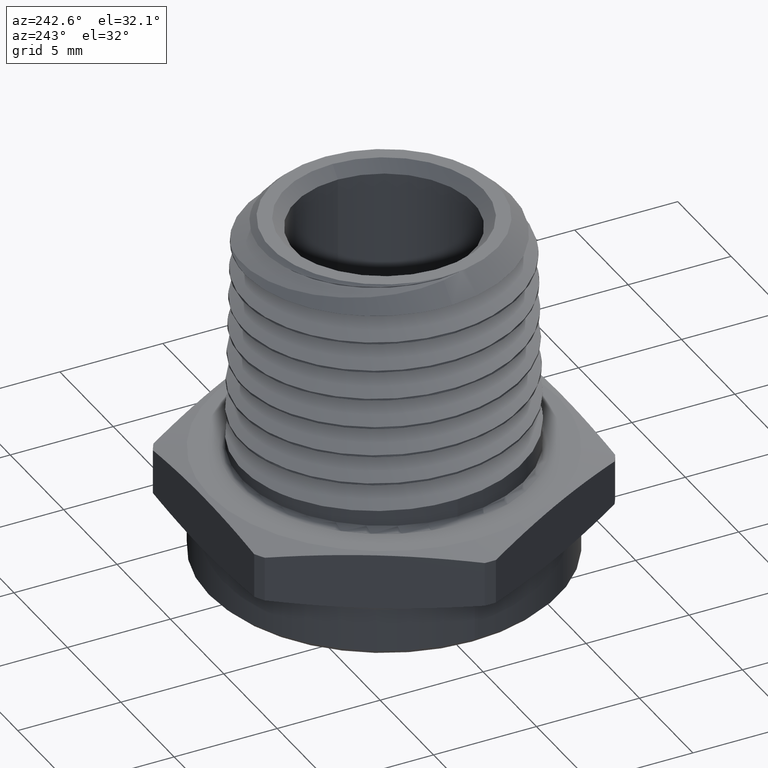
[diagram: clean part render]
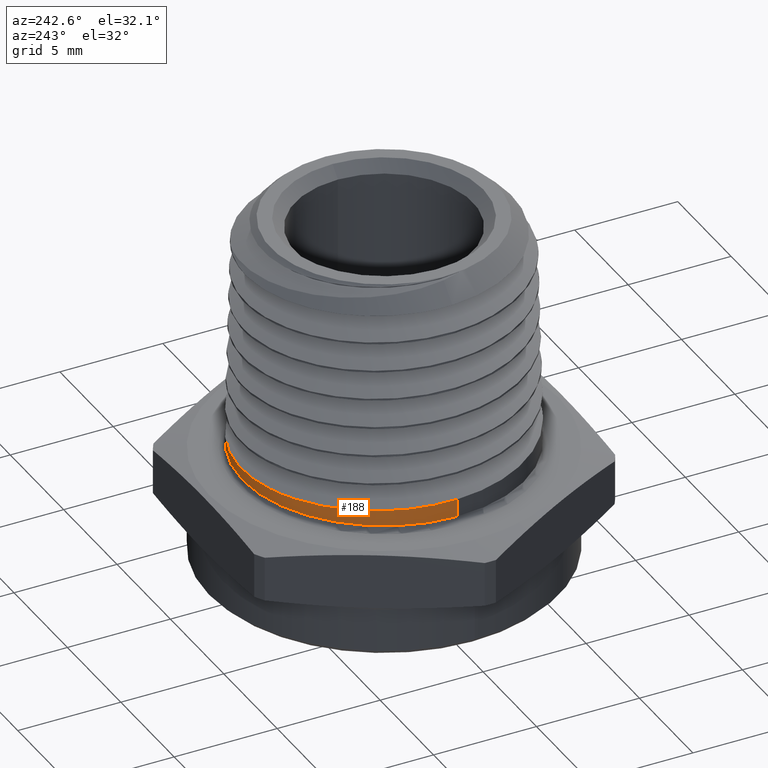
[diagram: same view with one face highlighted and labeled with its STEP entity id]
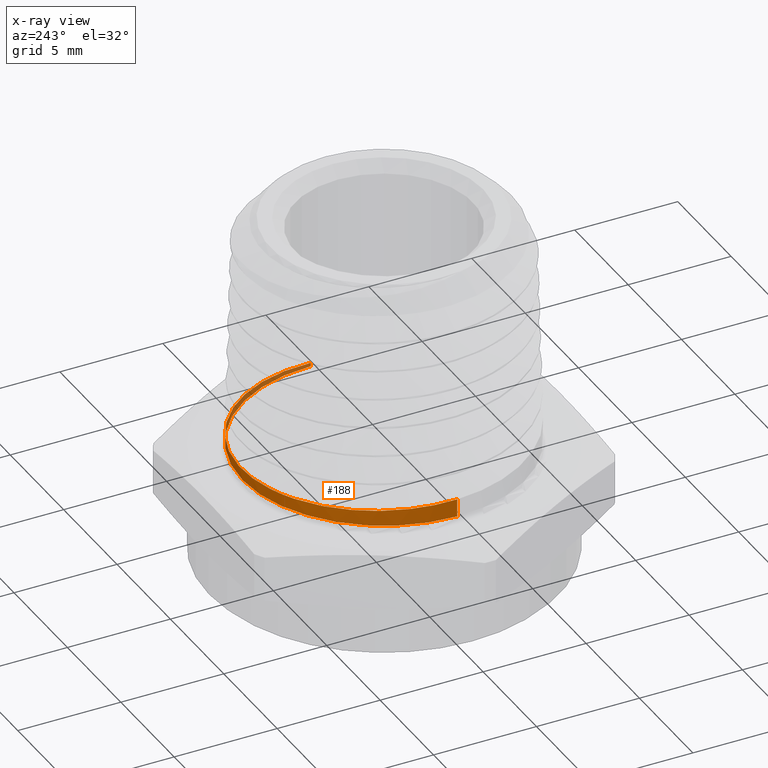
[diagram: x-ray of the same camera — body ghosted, the highlighted face saturated]
A machine part, auxiliary view. The second image highlights one B-rep face of the part: STEP entity #188.
The next image is the same camera in x-ray: the body ghosted, the highlighted face saturated — about 11% of this face is hidden behind the body in this view.
In plain terms, the highlighted cylindrical surface (partial cylindrical patch) has radius 6.858 mm, axis along (-0, -0, -1).
Its self-contained STEP definition (entity closure, byte-faithful):
#188 = ADVANCED_FACE ( 'NONE', ( #766 ), #769, .T. ) ;
#271 = EDGE_CURVE ( 'NONE', #467, #572, #1526, .T. ) ;
#272 = EDGE_CURVE ( 'NONE', #467, #644, #880, .T. ) ;
#273 = EDGE_CURVE ( 'NONE', #644, #641, #877, .T. ) ;
#274 = EDGE_CURVE ( 'NONE', #572, #641, #882, .T. ) ;
#463 = ORIENTED_EDGE ( 'NONE', *, *, #271, .F. ) ;
#467 = VERTEX_POINT ( 'NONE', #4915 ) ;
#516 = EDGE_LOOP ( 'NONE', ( #463, #544, #545, #546 ) ) ;
#544 = ORIENTED_EDGE ( 'NONE', *, *, #272, .T. ) ;
#545 = ORIENTED_EDGE ( 'NONE', *, *, #273, .T. ) ;
#546 = ORIENTED_EDGE ( 'NONE', *, *, #274, .F. ) ;
#572 = VERTEX_POINT ( 'NONE', #4940 ) ;
#641 = VERTEX_POINT ( 'NONE', #4954 ) ;
#644 = VERTEX_POINT ( 'NONE', #4957 ) ;
#766 = FACE_OUTER_BOUND ( 'NONE', #516, .T. ) ;
#769 = CYLINDRICAL_SURFACE ( 'NONE', #1694, 0.2700000000000000200 ) ;
#877 = CIRCLE ( 'NONE', #1744, 0.2700000000000000200 ) ;
#880 = LINE ( 'NONE', #2610, #881 ) ;
#881 = VECTOR ( 'NONE', #2612, 39.37007874015748100 ) ;
#882 = LINE ( 'NONE', #2611, #884 ) ;
#884 = VECTOR ( 'NONE', #2618, 39.37007874015748100 ) ;
#1526 = B_SPLINE_CURVE_WITH_KNOTS ( 'NONE', 3,
 ( #2564, #2565, #2569, #2570, #2571, #2572, #2573, #2574, #2575, #2576, #2577, #2578, #2579, #2580, #2581, #2582, #2583, #2584, #2585, #2586, #2587, #2588, #2589, #2590, #2591, #2592, #2593, #2594, #2595, #2596, #2597, #2598, #2599, #2600, #2601, #2602, #2603, #2604, #2605, #2606, #2607, #2608, #2609 ),
 .UNSPECIFIED., .F., .F.,
 ( 4, 2, 2, 2, 2, 2, 2, 2, 1, 2, 2, 2, 2, 2, 2, 2, 2, 2, 2, 2, 2, 4 ),
 ( 3.047113659557282900E-019, 0.001340394002137007300, 0.002010591003205511300, 0.002680788004274014700, 0.004021182006411021800, 0.005361576008548030200, 0.006701970010685037700, 0.007372167011753542400, 0.008042364012822047000, 0.008712561013890552500, 0.009382758014959058000, 0.01072315201709606700, 0.01206354601923307700, 0.01340394002137008600, 0.01474433402350709500, 0.01541453102457560200, 0.01608472802564410800, 0.01742512202778111900, 0.01809531902884962600, 0.01876551602991813300, 0.02010591003205514100, 0.02144630403419214800 ),
 .UNSPECIFIED. ) ;
#1611 = DIRECTION ( 'NONE',  ( -1.000000000000000000, 0.0000000000000000000, 0.0000000000000000000 ) ) ;
#1612 = CARTESIAN_POINT ( 'NONE',  ( 0.0000000000000000000, 0.0000000000000000000, 0.5699999999999999500 ) ) ;
#1613 = DIRECTION ( 'NONE',  ( -0.0000000000000000000, -0.0000000000000000000, -1.000000000000000000 ) ) ;
#1694 = AXIS2_PLACEMENT_3D ( 'NONE', #1612, #1613, #1611 ) ;
#1744 = AXIS2_PLACEMENT_3D ( 'NONE', #2615, #2616, #2617 ) ;
#2564 = CARTESIAN_POINT ( 'NONE',  ( 0.2700000000000000200, 5.166896526034304000E-016, 0.1268515041418107600 ) ) ;
#2565 = CARTESIAN_POINT ( 'NONE',  ( 0.2700000000000000700, 0.01783445152731889500, 0.1274269384289741500 ) ) ;
#2569 = CARTESIAN_POINT ( 'NONE',  ( 0.2682502563384419600, 0.03537138067886661700, 0.1279835175848953500 ) ) ;
#2570 = CARTESIAN_POINT ( 'NONE',  ( 0.2631085261991488700, 0.06124734353834508600, 0.1288346710481226800 ) ) ;
#2571 = CARTESIAN_POINT ( 'NONE',  ( 0.2609719895884684000, 0.06980058264910780900, 0.1291205109961278400 ) ) ;
#2572 = CARTESIAN_POINT ( 'NONE',  ( 0.2558344603213222300, 0.08675960811354767300, 0.1296969540593430600 ) ) ;
#2573 = CARTESIAN_POINT ( 'NONE',  ( 0.2528188307303880800, 0.09518884875942464100, 0.1299884193214419500 ) ) ;
#2574 = CARTESIAN_POINT ( 'NONE',  ( 0.2426577475059553100, 0.1197093562568807100, 0.1308447916443683500 ) ) ;
#2575 = CARTESIAN_POINT ( 'NONE',  ( 0.2343669510351275300, 0.1352158726190569000, 0.1313998592707439100 ) ) ;
#2576 = CARTESIAN_POINT ( 'NONE',  ( 0.2147805341364446000, 0.1645616057946035200, 0.1325381074111931000 ) ) ;
#2577 = CARTESIAN_POINT ( 'NONE',  ( 0.2033796956324514800, 0.1784568891828841900, 0.1331249872874615300 ) ) ;
#2578 = CARTESIAN_POINT ( 'NONE',  ( 0.1784744722225370900, 0.2033642659300488900, 0.1342614743186101600 ) ) ;
#2579 = CARTESIAN_POINT ( 'NONE',  ( 0.1648854460068792900, 0.2145408775478475400, 0.1348168728827416900 ) ) ;
#2580 = CARTESIAN_POINT ( 'NONE',  ( 0.1427583960047453500, 0.2293442608419149500, 0.1356757466267014300 ) ) ;
#2581 = CARTESIAN_POINT ( 'NONE',  ( 0.1350903001458071100, 0.2339416315203466700, 0.1359656919204895500 ) ) ;
#2582 = CARTESIAN_POINT ( 'NONE',  ( 0.1195055909079631300, 0.2422735848036770300, 0.1365407154947395300 ) ) ;
#2583 = CARTESIAN_POINT ( 'NONE',  ( 0.1035906053195424500, 0.2498008068791998900, 0.1371140563541170300 ) ) ;
#2584 = CARTESIAN_POINT ( 'NONE',  ( 0.08702490804668958100, 0.2557432891079883800, 0.1376753628090632000 ) ) ;
#2585 = CARTESIAN_POINT ( 'NONE',  ( 0.07012979715420854200, 0.2608826864615903500, 0.1382403279984579800 ) ) ;
#2586 = CARTESIAN_POINT ( 'NONE',  ( 0.06147438563975466500, 0.2630587177935813600, 0.1385260670990290400 ) ) ;
#2587 = CARTESIAN_POINT ( 'NONE',  ( 0.03532560583271775200, 0.2682686302207267800, 0.1393862719705689600 ) ) ;
#2588 = CARTESIAN_POINT ( 'NONE',  ( 0.01776996152224626400, 0.2699938980430861000, 0.1399623122440608900 ) ) ;
#2589 = CARTESIAN_POINT ( 'NONE',  ( -0.01758404679158271900, 0.2700060699529435700, 0.1411031102310831300 ) ) ;
#2590 = CARTESIAN_POINT ( 'NONE',  ( -0.03545093180093407400, 0.2682434125453591100, 0.1416699769316198700 ) ) ;
#2591 = CARTESIAN_POINT ( 'NONE',  ( -0.07005803201944450800, 0.2613487499283221900, 0.1428085096059333900 ) ) ;
#2592 = CARTESIAN_POINT ( 'NONE',  ( -0.08703200813992220700, 0.2562072555623230400, 0.1433877028999715200 ) ) ;
#2593 = CARTESIAN_POINT ( 'NONE',  ( -0.1199083582877405900, 0.2425669265509702900, 0.1445359959676083500 ) ) ;
#2594 = CARTESIAN_POINT ( 'NONE',  ( -0.1354263714337966000, 0.2342419649443940000, 0.1450919045714655400 ) ) ;
#2595 = CARTESIAN_POINT ( 'NONE',  ( -0.1573682204637789900, 0.2195737763104860200, 0.1459434661137437300 ) ) ;
#2596 = CARTESIAN_POINT ( 'NONE',  ( -0.1644580410881340500, 0.2143182696693025100, 0.1462296713347236700 ) ) ;
#2597 = CARTESIAN_POINT ( 'NONE',  ( -0.1781774791141257900, 0.2030555439507267800, 0.1468072408967733600 ) ) ;
#2598 = CARTESIAN_POINT ( 'NONE',  ( -0.1847973313768501200, 0.1970482417521815500, 0.1470983492866631300 ) ) ;
#2599 = CARTESIAN_POINT ( 'NONE',  ( -0.2035279334639231200, 0.1782936716387625000, 0.1479534526292354000 ) ) ;
#2600 = CARTESIAN_POINT ( 'NONE',  ( -0.2146769399322362400, 0.1646988692315010400, 0.1485084882366272700 ) ) ;
#2601 = CARTESIAN_POINT ( 'NONE',  ( -0.2293957849049994000, 0.1426728789364687100, 0.1493631881303134600 ) ) ;
#2602 = CARTESIAN_POINT ( 'NONE',  ( -0.2339870483908745000, 0.1350146533939686200, 0.1496527617789156200 ) ) ;
#2603 = CARTESIAN_POINT ( 'NONE',  ( -0.2423548061569767700, 0.1193442222245432600, 0.1502308026347014800 ) ) ;
#2604 = CARTESIAN_POINT ( 'NONE',  ( -0.2461231997872563900, 0.1113589157249600000, 0.1505183446227804900 ) ) ;
#2605 = CARTESIAN_POINT ( 'NONE',  ( -0.2562164072194421700, 0.08696495277631738400, 0.1513700617943435100 ) ) ;
#2606 = CARTESIAN_POINT ( 'NONE',  ( -0.2613407848404256700, 0.07012250413707397900, 0.1519257938527396000 ) ) ;
#2607 = CARTESIAN_POINT ( 'NONE',  ( -0.2682798121680992100, 0.03524363475172520600, 0.1530731614110629500 ) ) ;
#2608 = CARTESIAN_POINT ( 'NONE',  ( -0.2700000000000325500, 0.01758202900149030700, 0.1536526273707124500 ) ) ;
#2609 = CARTESIAN_POINT ( 'NONE',  ( -0.2700000000000000200, -5.001907114631542600E-013, 0.1542199171673591700 ) ) ;
#2610 = CARTESIAN_POINT ( 'NONE',  ( 0.2700000000000000200, 3.306546357697853700E-017, 0.5699999999999999500 ) ) ;
#2611 = CARTESIAN_POINT ( 'NONE',  ( -0.2700000000000000200, 0.0000000000000000000, 0.5699999999999999500 ) ) ;
#2612 = DIRECTION ( 'NONE',  ( -0.0000000000000000000, -0.0000000000000000000, -1.000000000000000000 ) ) ;
#2615 = CARTESIAN_POINT ( 'NONE',  ( 0.0000000000000000000, 0.0000000000000000000, 0.1200000000000000200 ) ) ;
#2616 = DIRECTION ( 'NONE',  ( -0.0000000000000000000, 0.0000000000000000000, 1.000000000000000000 ) ) ;
#2617 = DIRECTION ( 'NONE',  ( 1.000000000000000000, 0.0000000000000000000, 0.0000000000000000000 ) ) ;
#2618 = DIRECTION ( 'NONE',  ( -0.0000000000000000000, -0.0000000000000000000, -1.000000000000000000 ) ) ;
#4915 = CARTESIAN_POINT ( 'NONE',  ( 0.2700000000000000200, 5.166896526034304000E-016, 0.1268515041418107600 ) ) ;
#4940 = CARTESIAN_POINT ( 'NONE',  ( -0.2700000000000000200, -5.001907114631542600E-013, 0.1542199171673591700 ) ) ;
#4954 = CARTESIAN_POINT ( 'NONE',  ( -0.2700000000000000200, 0.0000000000000000000, 0.1200000000000000200 ) ) ;
#4957 = CARTESIAN_POINT ( 'NONE',  ( 0.2700000000000000200, 3.306546357697853700E-017, 0.1200000000000000200 ) ) ;